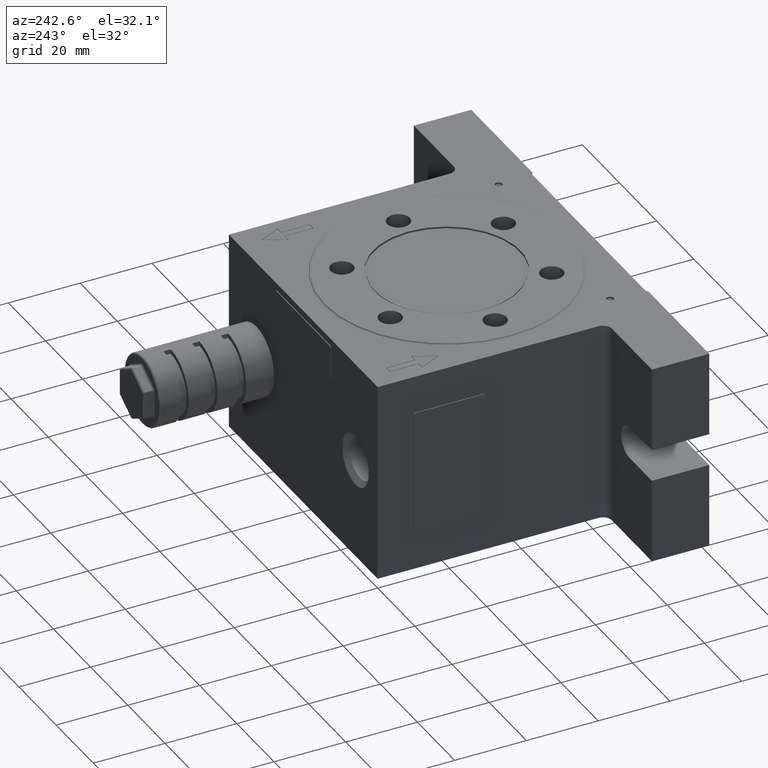
[diagram: clean part render]
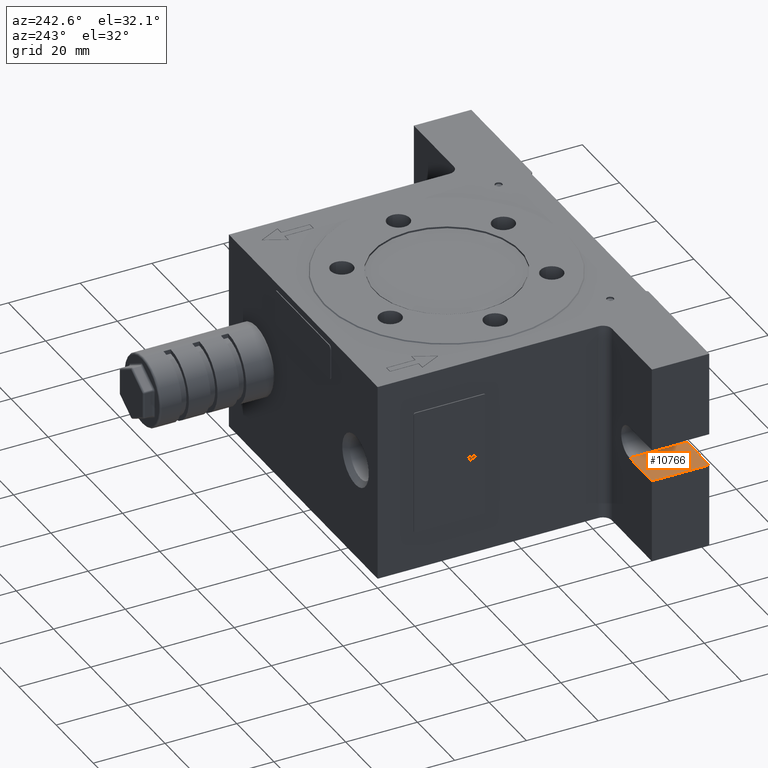
[diagram: same view with one face highlighted and labeled with its STEP entity id]
A machine part, auxiliary view. The second image highlights one B-rep face of the part: STEP entity #10766.
In plain terms, the highlighted planar face has unit normal (-0, 0, -1).
Its self-contained STEP definition (entity closure, byte-faithful):
#280 = DIRECTION ( 'NONE',  ( -1.000000000000000000, 0.0000000000000000000, 7.228014483236690600E-016 ) ) ;
#464 = VERTEX_POINT ( 'NONE', #12543 ) ;
#1281 = ORIENTED_EDGE ( 'NONE', *, *, #4112, .T. ) ;
#2046 = ORIENTED_EDGE ( 'NONE', *, *, #10854, .F. ) ;
#2097 = CARTESIAN_POINT ( 'NONE',  ( -52.00000000000000000, -40.00000000000000000, -4.500000000000000000 ) ) ;
#2485 = DIRECTION ( 'NONE',  ( -1.000000000000000000, 0.0000000000000000000, 7.228014483236690600E-016 ) ) ;
#2720 = VECTOR ( 'NONE', #2485, 1000.000000000000000 ) ;
#3685 = AXIS2_PLACEMENT_3D ( 'NONE', #13168, #18421, #10077 ) ;
#4112 = EDGE_CURVE ( 'NONE', #8528, #464, #5689, .T. ) ;
#4261 = EDGE_LOOP ( 'NONE', ( #1281, #4880, #2046, #19904 ) ) ;
#4536 = VECTOR ( 'NONE', #5628, 1000.000000000000000 ) ;
#4880 = ORIENTED_EDGE ( 'NONE', *, *, #6019, .F. ) ;
#5628 = DIRECTION ( 'NONE',  ( 0.0000000000000000000, 1.000000000000000000, 0.0000000000000000000 ) ) ;
#5689 = LINE ( 'NONE', #13118, #2720 ) ;
#6019 = EDGE_CURVE ( 'NONE', #14333, #464, #13859, .T. ) ;
#6608 = CARTESIAN_POINT ( 'NONE',  ( -64.00000000000000000, -40.00000000000000000, -4.500000000000000000 ) ) ;
#6677 = LINE ( 'NONE', #2097, #4536 ) ;
#6691 = PLANE ( 'NONE',  #3685 ) ;
#7525 = VECTOR ( 'NONE', #22606, 1000.000000000000000 ) ;
#8528 = VERTEX_POINT ( 'NONE', #19721 ) ;
#9220 = LINE ( 'NONE', #19076, #11126 ) ;
#10077 = DIRECTION ( 'NONE',  ( -1.000000000000000000, 0.0000000000000000000, 7.228014483236690600E-016 ) ) ;
#10766 = ADVANCED_FACE ( 'NONE', ( #17211 ), #6691, .F. ) ;
#10854 = EDGE_CURVE ( 'NONE', #11311, #14333, #9220, .T. ) ;
#11126 = VECTOR ( 'NONE', #280, 1000.000000000000000 ) ;
#11311 = VERTEX_POINT ( 'NONE', #14144 ) ;
#12543 = CARTESIAN_POINT ( 'NONE',  ( -64.00000000000000000, -24.00000000000000000, -4.500000000000000000 ) ) ;
#13118 = CARTESIAN_POINT ( 'NONE',  ( -64.00000000000000000, -24.00000000000000000, -4.500000000000000000 ) ) ;
#13168 = CARTESIAN_POINT ( 'NONE',  ( -64.00000000000000000, -40.00000000000000000, -4.500000000000000000 ) ) ;
#13577 = CARTESIAN_POINT ( 'NONE',  ( -64.00000000000000000, -40.00000000000000000, -4.500000000000000000 ) ) ;
#13859 = LINE ( 'NONE', #6608, #7525 ) ;
#14144 = CARTESIAN_POINT ( 'NONE',  ( -52.00000000000000000, -40.00000000000000000, -4.500000000000000000 ) ) ;
#14333 = VERTEX_POINT ( 'NONE', #13577 ) ;
#16667 = EDGE_CURVE ( 'NONE', #11311, #8528, #6677, .T. ) ;
#17211 = FACE_OUTER_BOUND ( 'NONE', #4261, .T. ) ;
#18421 = DIRECTION ( 'NONE',  ( -7.228014483236690600E-016, 0.0000000000000000000, -1.000000000000000000 ) ) ;
#19076 = CARTESIAN_POINT ( 'NONE',  ( -64.00000000000000000, -40.00000000000000000, -4.500000000000000000 ) ) ;
#19721 = CARTESIAN_POINT ( 'NONE',  ( -52.00000000000000000, -24.00000000000000000, -4.500000000000000000 ) ) ;
#19904 = ORIENTED_EDGE ( 'NONE', *, *, #16667, .T. ) ;
#22606 = DIRECTION ( 'NONE',  ( 0.0000000000000000000, 1.000000000000000000, 0.0000000000000000000 ) ) ;